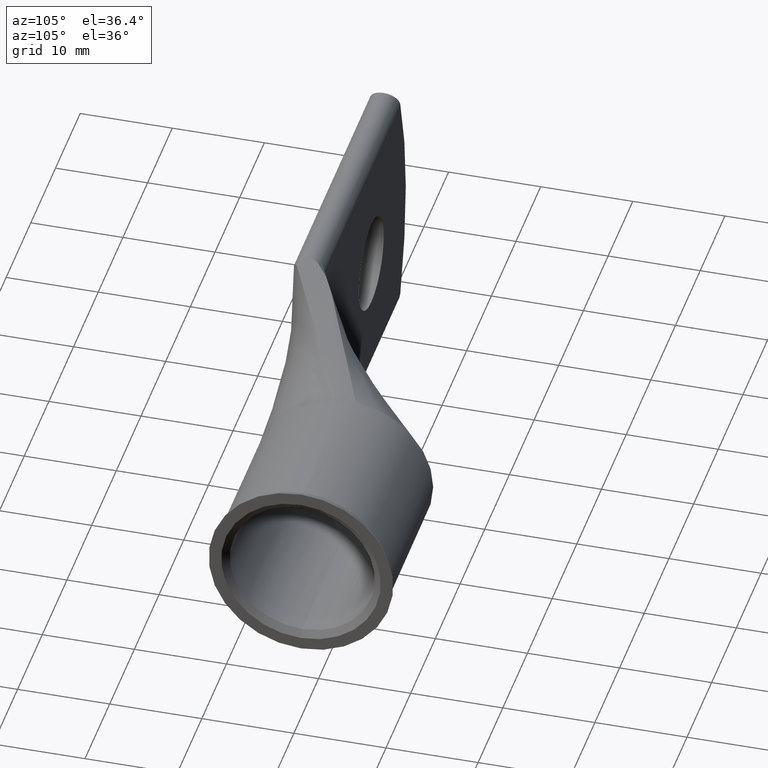
[diagram: clean part render]
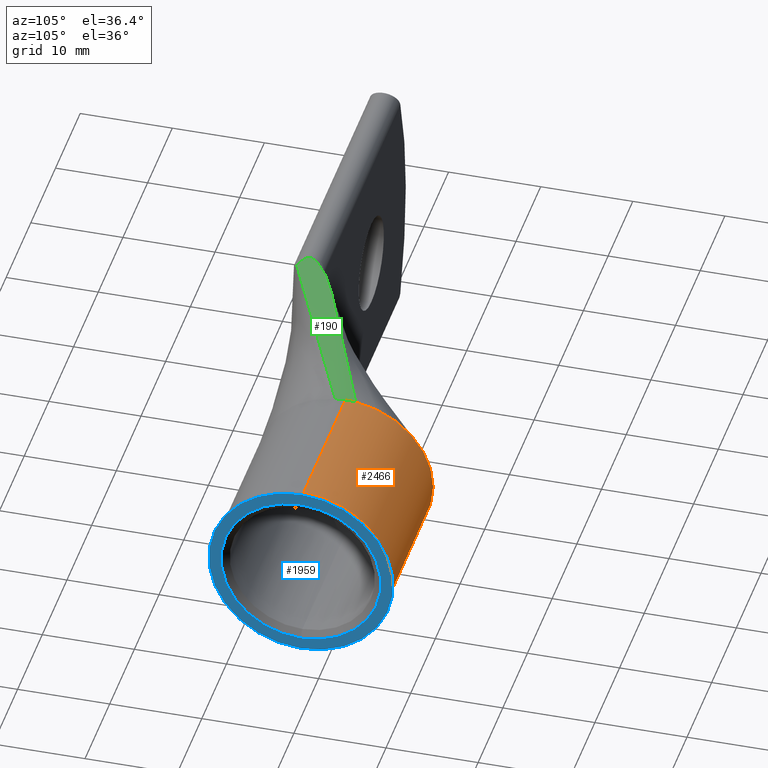
[diagram: same view with three faces highlighted in distinct colors, each labeled with its STEP entity id]
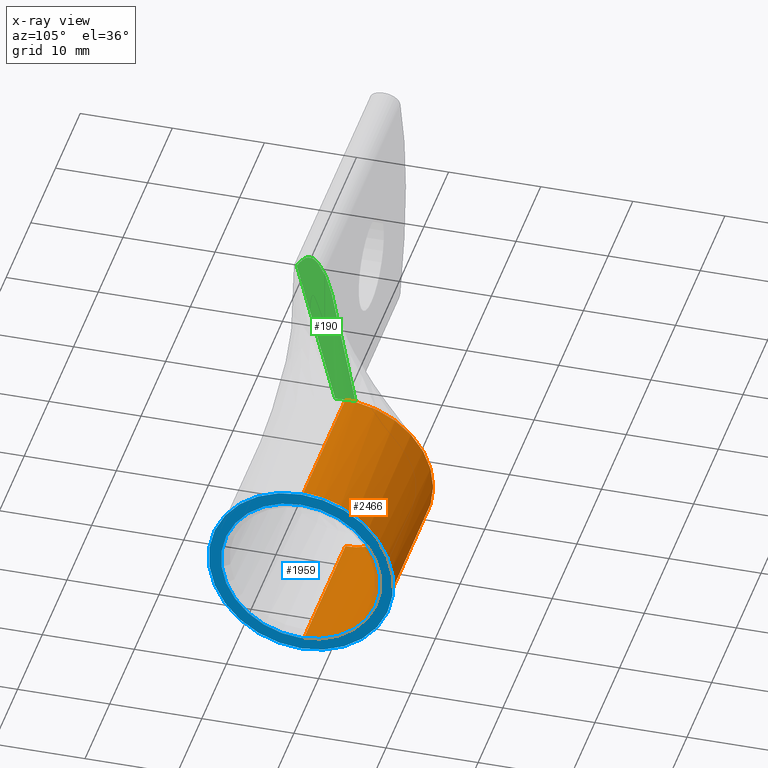
[diagram: x-ray of the same camera — body ghosted, the three highlighted faces saturated]
A machine part, auxiliary view with three faces highlighted in distinct colors.
The next image is the same camera in x-ray (body ghosted, the three faces saturated) — at least one of them is partly hidden behind the body in this view.
Their STEP definitions:

[orange] entity #2466 — the highlighted cylindrical surface (partial cylindrical patch) has radius 9.525 mm, axis along (1, 0, 0).
#9 = CARTESIAN_POINT ( 'NONE',  ( 2.008032000000000039, 0.3398715056912016697, 0.3750000000000000555 ) ) ;
#135 = VERTEX_POINT ( 'NONE', #4416 ) ;
#212 = CARTESIAN_POINT ( 'NONE',  ( 1.338032000000000110, 0.3398715056912016697, 0.3749955221139532058 ) ) ;
#231 = VECTOR ( 'NONE', #371, 39.37007874015748143 ) ;
#285 = DIRECTION ( 'NONE',  ( 1.000000000000000000, 0.000000000000000000, 0.000000000000000000 ) ) ;
#309 = CYLINDRICAL_SURFACE ( 'NONE', #812, 0.3750000000000000555 ) ;
#318 = CIRCLE ( 'NONE', #2470, 0.3750000000000000555 ) ;
#346 = VERTEX_POINT ( 'NONE', #2140 ) ;
#371 = DIRECTION ( 'NONE',  ( 1.000000000000000000, 0.000000000000000000, 0.000000000000000000 ) ) ;
#484 = B_SPLINE_CURVE_WITH_KNOTS ( 'NONE', 3,
 ( #2736, #1978, #3935, #4662, #822, #2341, #3520, #3149, #2762, #1536, #5053, #1487, #3574, #1204, #2316, #715, #4350, #9 ),
 .UNSPECIFIED., .F., .F.,
 ( 4, 2, 2, 2, 2, 2, 2, 2, 4 ),
 ( 0.8968421699546255121, 0.9593421699546255121, 1.021842169954625401, 1.084342169954625401, 1.146842169954625401, 1.209342169954625401, 1.271842169954625401, 1.334342169954625401, 1.396842169954625401 ),
 .UNSPECIFIED. ) ;
#552 = ORIENTED_EDGE ( 'NONE', *, *, #2098, .T. ) ;
#565 = DIRECTION ( 'NONE',  ( 0.000000000000000000, 0.000000000000000000, -1.000000000000000000 ) ) ;
#580 = ORIENTED_EDGE ( 'NONE', *, *, #3165, .T. ) ;
#715 = CARTESIAN_POINT ( 'NONE',  ( 2.008032000000000483, 0.4380269623259317457, 0.3652397537506184011 ) ) ;
#764 = CARTESIAN_POINT ( 'NONE',  ( 1.338032000000000110, 0.3398715056912016141, -0.3750000000000000555 ) ) ;
#781 = DIRECTION ( 'NONE',  ( 0.000000000000000000, 0.000000000000000000, -1.000000000000000000 ) ) ;
#812 = AXIS2_PLACEMENT_3D ( 'NONE', #4672, #285, #781 ) ;
#822 = CARTESIAN_POINT ( 'NONE',  ( 2.008032000000000039, 0.5703265256817947604, -0.2998750658993174500 ) ) ;
#955 = CARTESIAN_POINT ( 'NONE',  ( 1.338032000000000110, 0.3838862804103131410, -0.3724332766821089047 ) ) ;
#1058 = CIRCLE ( 'NONE', #3046, 0.3750000000000000555 ) ;
#1079 = DIRECTION ( 'NONE',  ( 1.000000000000000000, 0.000000000000000000, 0.000000000000000000 ) ) ;
#1102 = CARTESIAN_POINT ( 'NONE',  ( 2.008032000000000039, 0.3398715056912016697, -0.3750000000000000555 ) ) ;
#1204 = CARTESIAN_POINT ( 'NONE',  ( 2.008032000000000927, 0.5703265256817946494, 0.2998750658993176166 ) ) ;
#1271 = EDGE_CURVE ( 'NONE', #135, #3771, #4708, .T. ) ;
#1456 = EDGE_LOOP ( 'NONE', ( #4165, #552, #3462, #2989, #2729, #580 ) ) ;
#1470 = CIRCLE ( 'NONE', #3469, 0.3750000000000000555 ) ;
#1487 = CARTESIAN_POINT ( 'NONE',  ( 2.008032000000000039, 0.6675414013240483779, 0.1888571176390873574 ) ) ;
#1536 = CARTESIAN_POINT ( 'NONE',  ( 2.008031999999999595, 0.7148715056912018362, 0.04908738521234055907 ) ) ;
#1571 = CARTESIAN_POINT ( 'NONE',  ( 1.338032000000000110, 0.3398715056912016697, 0.3750000000000000555 ) ) ;
#1581 = VERTEX_POINT ( 'NONE', #955 ) ;
#1801 = CARTESIAN_POINT ( 'NONE',  ( 1.338032000000000110, 0.3398715056912016141, 0.000000000000000000 ) ) ;
#1978 = CARTESIAN_POINT ( 'NONE',  ( 2.008032000000000483, 0.3889588909035424646, -0.3749999999999999445 ) ) ;
#2098 = EDGE_CURVE ( 'NONE', #4969, #4013, #3556, .T. ) ;
#2140 = CARTESIAN_POINT ( 'NONE',  ( 1.338032000000000110, 0.3838862977660709164, 0.3724334059865022084 ) ) ;
#2253 = EDGE_CURVE ( 'NONE', #135, #1581, #1058, .T. ) ;
#2316 = CARTESIAN_POINT ( 'NONE',  ( 2.008032000000000039, 0.5287286233302888050, 0.3276698956328469303 ) ) ;
#2341 = CARTESIAN_POINT ( 'NONE',  ( 2.008032000000000483, 0.6397465715905193973, -0.2304550199905930630 ) ) ;
#2395 = CARTESIAN_POINT ( 'NONE',  ( 2.008032000000000039, 0.3398715056912016697, 0.3750000000000000555 ) ) ;
#2466 = ADVANCED_FACE ( 'NONE', ( #4334 ), #309, .T. ) ;
#2470 = AXIS2_PLACEMENT_3D ( 'NONE', #4410, #4508, #565 ) ;
#2637 = VECTOR ( 'NONE', #3157, 39.37007874015748143 ) ;
#2729 = ORIENTED_EDGE ( 'NONE', *, *, #2253, .T. ) ;
#2736 = CARTESIAN_POINT ( 'NONE',  ( 2.008032000000000039, 0.3398715056912016697, -0.3750000000000000555 ) ) ;
#2762 = CARTESIAN_POINT ( 'NONE',  ( 2.008032000000000039, 0.7148715056912015031, -0.04908738521234044805 ) ) ;
#2989 = ORIENTED_EDGE ( 'NONE', *, *, #1271, .F. ) ;
#3046 = AXIS2_PLACEMENT_3D ( 'NONE', #1801, #1079, #3836 ) ;
#3149 = CARTESIAN_POINT ( 'NONE',  ( 2.008032000000000039, 0.7051112594418200707, -0.09815545663472999283 ) ) ;
#3157 = DIRECTION ( 'NONE',  ( 1.000000000000000000, 0.000000000000000000, 0.000000000000000000 ) ) ;
#3165 = EDGE_CURVE ( 'NONE', #1581, #346, #1470, .T. ) ;
#3459 = EDGE_CURVE ( 'NONE', #346, #4969, #318, .T. ) ;
#3462 = ORIENTED_EDGE ( 'NONE', *, *, #3907, .F. ) ;
#3469 = AXIS2_PLACEMENT_3D ( 'NONE', #3998, #3972, #3581 ) ;
#3520 = CARTESIAN_POINT ( 'NONE',  ( 2.008032000000000039, 0.6675414013240483779, -0.1888571176390872741 ) ) ;
#3556 = LINE ( 'NONE', #1571, #2637 ) ;
#3574 = CARTESIAN_POINT ( 'NONE',  ( 2.008031999999999595, 0.6397465715905189532, 0.2304550199905930907 ) ) ;
#3581 = DIRECTION ( 'NONE',  ( 0.000000000000000000, 0.000000000000000000, -1.000000000000000000 ) ) ;
#3771 = VERTEX_POINT ( 'NONE', #1102 ) ;
#3836 = DIRECTION ( 'NONE',  ( 0.000000000000000000, 0.000000000000000000, -1.000000000000000000 ) ) ;
#3907 = EDGE_CURVE ( 'NONE', #3771, #4013, #484, .T. ) ;
#3935 = CARTESIAN_POINT ( 'NONE',  ( 2.008032000000000039, 0.4380269623259318568, -0.3652397537506183456 ) ) ;
#3972 = DIRECTION ( 'NONE',  ( 1.000000000000000000, 0.000000000000000000, 0.000000000000000000 ) ) ;
#3998 = CARTESIAN_POINT ( 'NONE',  ( 1.338032000000000110, 0.3398715056912016141, 0.000000000000000000 ) ) ;
#4013 = VERTEX_POINT ( 'NONE', #2395 ) ;
#4165 = ORIENTED_EDGE ( 'NONE', *, *, #3459, .T. ) ;
#4334 = FACE_OUTER_BOUND ( 'NONE', #1456, .T. ) ;
#4350 = CARTESIAN_POINT ( 'NONE',  ( 2.008032000000000039, 0.3889588909035424091, 0.3750000000000000555 ) ) ;
#4410 = CARTESIAN_POINT ( 'NONE',  ( 1.338032000000000110, 0.3398715056912016141, 0.000000000000000000 ) ) ;
#4416 = CARTESIAN_POINT ( 'NONE',  ( 1.338032000000000110, 0.3398715056912016697, -0.3749955221139530948 ) ) ;
#4508 = DIRECTION ( 'NONE',  ( 1.000000000000000000, 0.000000000000000000, 0.000000000000000000 ) ) ;
#4662 = CARTESIAN_POINT ( 'NONE',  ( 2.008032000000000039, 0.5287286233302889160, -0.3276698956328467083 ) ) ;
#4672 = CARTESIAN_POINT ( 'NONE',  ( 1.338032000000000110, 0.3398715056912016141, 0.000000000000000000 ) ) ;
#4708 = LINE ( 'NONE', #764, #231 ) ;
#4969 = VERTEX_POINT ( 'NONE', #212 ) ;
#5053 = CARTESIAN_POINT ( 'NONE',  ( 2.008032000000000039, 0.7051112594418198487, 0.09815545663473013160 ) ) ;

[blue] entity #1959 — the highlighted planar face has unit normal (-1, 0, -0).
#32 = ORIENTED_EDGE ( 'NONE', *, *, #217, .T. ) ;
#74 = CARTESIAN_POINT ( 'NONE',  ( 2.047402078740157449, 0.3398715089448515192, 0.3946798216760702971 ) ) ;
#185 = VERTEX_POINT ( 'NONE', #74 ) ;
#217 = EDGE_CURVE ( 'NONE', #2283, #2438, #4050, .T. ) ;
#227 = DIRECTION ( 'NONE',  ( 0.000000000000000000, 0.000000000000000000, -1.000000000000000000 ) ) ;
#359 = CARTESIAN_POINT ( 'NONE',  ( 2.047402078740157449, 0.3398715056912016141, 0.000000000000000000 ) ) ;
#537 = CARTESIAN_POINT ( 'NONE',  ( 2.047402078740157449, 0.3398715056912016141, 0.000000000000000000 ) ) ;
#541 = CARTESIAN_POINT ( 'NONE',  ( 2.047402078740157449, 0.3398715056912016141, 0.000000000000000000 ) ) ;
#562 = DIRECTION ( 'NONE',  ( 0.000000000000000000, 0.000000000000000000, 1.000000000000000000 ) ) ;
#643 = CARTESIAN_POINT ( 'NONE',  ( 2.047402078740157449, 0.3398715056912016697, 0.3414244647129196508 ) ) ;
#671 = CARTESIAN_POINT ( 'NONE',  ( 2.047402078740157449, 0.3398715056912016141, 0.000000000000000000 ) ) ;
#751 = DIRECTION ( 'NONE',  ( -0.000000000000000000, 0.000000000000000000, 1.000000000000000000 ) ) ;
#890 = CARTESIAN_POINT ( 'NONE',  ( 2.047402078740157449, 0.3398715044850830203, -0.3946826645454746263 ) ) ;
#991 = EDGE_LOOP ( 'NONE', ( #1732, #1146 ) ) ;
#1059 = FACE_OUTER_BOUND ( 'NONE', #991, .T. ) ;
#1134 = PLANE ( 'NONE',  #2885 ) ;
#1146 = ORIENTED_EDGE ( 'NONE', *, *, #2533, .F. ) ;
#1170 = EDGE_CURVE ( 'NONE', #4656, #185, #4291, .T. ) ;
#1221 = AXIS2_PLACEMENT_3D ( 'NONE', #541, #3787, #227 ) ;
#1433 = CARTESIAN_POINT ( 'NONE',  ( 2.047402078740157449, 0.3398715056912016141, 0.000000000000000000 ) ) ;
#1643 = DIRECTION ( 'NONE',  ( -1.000000000000000000, -0.000000000000000000, -0.000000000000000000 ) ) ;
#1732 = ORIENTED_EDGE ( 'NONE', *, *, #1170, .F. ) ;
#1881 = CIRCLE ( 'NONE', #4713, 0.3414244647129196508 ) ;
#1904 = DIRECTION ( 'NONE',  ( -1.000000000000000000, -0.000000000000000000, -0.000000000000000000 ) ) ;
#1959 = ADVANCED_FACE ( 'NONE', ( #3104, #1059 ), #1134, .F. ) ;
#2236 = DIRECTION ( 'NONE',  ( 0.000000000000000000, 0.000000000000000000, -1.000000000000000000 ) ) ;
#2283 = VERTEX_POINT ( 'NONE', #643 ) ;
#2438 = VERTEX_POINT ( 'NONE', #2956 ) ;
#2533 = EDGE_CURVE ( 'NONE', #185, #4656, #3713, .T. ) ;
#2563 = EDGE_CURVE ( 'NONE', #2438, #2283, #1881, .T. ) ;
#2718 = DIRECTION ( 'NONE',  ( -1.000000000000000000, 0.000000000000000000, -0.000000000000000000 ) ) ;
#2885 = AXIS2_PLACEMENT_3D ( 'NONE', #359, #2718, #751 ) ;
#2956 = CARTESIAN_POINT ( 'NONE',  ( 2.047402078740157449, 0.3398715056912016141, -0.3414244647129196508 ) ) ;
#3016 = DIRECTION ( 'NONE',  ( -1.000000000000000000, -0.000000000000000000, -0.000000000000000000 ) ) ;
#3104 = FACE_BOUND ( 'NONE', #4548, .T. ) ;
#3200 = ORIENTED_EDGE ( 'NONE', *, *, #2563, .T. ) ;
#3463 = AXIS2_PLACEMENT_3D ( 'NONE', #1433, #3016, #2236 ) ;
#3713 = CIRCLE ( 'NONE', #1221, 0.3946850000000000080 ) ;
#3787 = DIRECTION ( 'NONE',  ( -1.000000000000000000, -0.000000000000000000, -0.000000000000000000 ) ) ;
#3838 = DIRECTION ( 'NONE',  ( 0.000000000000000000, 0.000000000000000000, 1.000000000000000000 ) ) ;
#4050 = CIRCLE ( 'NONE', #4957, 0.3414244647129196508 ) ;
#4291 = CIRCLE ( 'NONE', #3463, 0.3946850000000000080 ) ;
#4548 = EDGE_LOOP ( 'NONE', ( #3200, #32 ) ) ;
#4656 = VERTEX_POINT ( 'NONE', #890 ) ;
#4713 = AXIS2_PLACEMENT_3D ( 'NONE', #671, #1904, #3838 ) ;
#4957 = AXIS2_PLACEMENT_3D ( 'NONE', #537, #1643, #562 ) ;

[green] entity #190 — the highlighted face is a freeform B-spline surface patch.
#22 = CARTESIAN_POINT ( 'NONE',  ( 1.344912320000000161, 0.2701817141532486533, 0.3671195429821912937 ) ) ;
#45 = B_SPLINE_CURVE_WITH_KNOTS ( 'NONE', 3,
 ( #3372, #4132, #2149, #1754, #4959, #1396, #4932, #2979, #4205, #1368 ),
 .UNSPECIFIED., .F., .F.,
 ( 4, 2, 2, 2, 4 ),
 ( 5.598943582528966244E-13, 0.0002157102203172836833, 0.0004314204400746731133, 0.0008628408795894528405, 0.001725681758619002429 ),
 .UNSPECIFIED. ) ;
#49 = CARTESIAN_POINT ( 'NONE',  ( 1.338032000000000110, 0.2958596138713020518, 0.3724083153991509243 ) ) ;
#67 = CARTESIAN_POINT ( 'NONE',  ( 1.344912320000000161, 0.3876521620972374071, 0.3705628370566880214 ) ) ;
#84 = DIRECTION ( 'NONE',  ( 0.000000000000000000, 0.000000000000000000, -1.000000000000000000 ) ) ;
#125 = CARTESIAN_POINT ( 'NONE',  ( 1.344912320000000161, 0.3579220934793495013, 0.3732409546701854208 ) ) ;
#144 = CARTESIAN_POINT ( 'NONE',  ( -0.04491231999999978353, -0.2570722314862122770, 0.7293676014468575275 ) ) ;
#150 = CARTESIAN_POINT ( 'NONE',  ( -0.04491231999999978353, -0.4006331419523084247, 0.7276285640354955842 ) ) ;
#174 = CARTESIAN_POINT ( 'NONE',  ( 1.400505305600000749, 0.4128380100051096124, 0.3562829904373937540 ) ) ;
#190 = ADVANCED_FACE ( 'NONE', ( #3240 ), #2591, .T. ) ;
#212 = CARTESIAN_POINT ( 'NONE',  ( 1.338032000000000110, 0.3398715056912016697, 0.3749955221139532058 ) ) ;
#318 = CIRCLE ( 'NONE', #2470, 0.3750000000000000555 ) ;
#346 = VERTEX_POINT ( 'NONE', #2140 ) ;
#520 = CARTESIAN_POINT ( 'NONE',  ( 1.344912320000000161, 0.3870722314862123370, 0.3706323985531424503 ) ) ;
#543 = CARTESIAN_POINT ( 'NONE',  ( -0.04491231999999978353, -0.3719516813502108943, 0.7267590453298146125 ) ) ;
#563 = VECTOR ( 'NONE', #1496, 39.37007874015748143 ) ;
#565 = DIRECTION ( 'NONE',  ( 0.000000000000000000, 0.000000000000000000, -1.000000000000000000 ) ) ;
#571 = CARTESIAN_POINT ( 'NONE',  ( -0.04491231999999978353, -0.3145887601460159999, 0.7267590453298146125 ) ) ;
#586 = ORIENTED_EDGE ( 'NONE', *, *, #3459, .F. ) ;
#714 = CARTESIAN_POINT ( 'NONE',  ( 0.6499999999999999112, 0.007301848043493756879, 0.5500000000000000444 ) ) ;
#794 = CARTESIAN_POINT ( 'NONE',  ( 1.338032000000000110, 0.3398715056912016141, 0.000000000000000000 ) ) ;
#795 = CARTESIAN_POINT ( 'NONE',  ( 0.6663058742711124305, 0.03905505243823405304, 0.5458397738843744351 ) ) ;
#807 = CARTESIAN_POINT ( 'NONE',  ( 1.400505305600000749, 0.2723695024268664722, 0.3486952224041394710 ) ) ;
#816 = EDGE_CURVE ( 'NONE', #5047, #2261, #3246, .T. ) ;
#821 = CARTESIAN_POINT ( 'NONE',  ( 0.6916212427968164711, 0.06455383082497455349, 0.5393461594390989156 ) ) ;
#873 = CARTESIAN_POINT ( 'NONE',  ( 1.338032000000000110, 0.3841747823020378316, 0.3723738790147675393 ) ) ;
#908 = CARTESIAN_POINT ( 'NONE',  ( -4.214386239999998729, -2.761405332406074553, 1.830163199124660744 ) ) ;
#924 = CARTESIAN_POINT ( 'NONE',  ( -4.214386239999998729, -2.186631801347328263, 1.806060140603184649 ) ) ;
#930 = CARTESIAN_POINT ( 'NONE',  ( -0.04491231999999978353, -0.2859072995439186360, 0.7276285640354955842 ) ) ;
#952 = CARTESIAN_POINT ( 'NONE',  ( 1.400505305600000749, 0.3989132168407656387, 0.3581611508416646661 ) ) ;
#1043 = ORIENTED_EDGE ( 'NONE', *, *, #2982, .T. ) ;
#1127 = CARTESIAN_POINT ( 'NONE',  ( 0.6500000000000556444, 0.01194911304803299157, 0.5499999999999861666 ) ) ;
#1132 = LINE ( 'NONE', #2796, #5045 ) ;
#1150 = DIRECTION ( 'NONE',  ( 0.8833902792301041584, 0.4094264417486048746, -0.2280166734228766812 ) ) ;
#1216 = CARTESIAN_POINT ( 'NONE',  ( 1.338032000000000110, 0.2664297499867149255, 0.3689302405764269821 ) ) ;
#1262 = CARTESIAN_POINT ( 'NONE',  ( -0.04491231999999978353, -0.2553421274027498633, 0.7294719436915393374 ) ) ;
#1269 = CARTESIAN_POINT ( 'NONE',  ( -4.214386239999998729, -3.051661057078013606, 1.879343177117977381 ) ) ;
#1279 = CARTESIAN_POINT ( 'NONE',  ( 1.338032000000000110, 0.2958568313063515420, 0.3724324052485260550 ) ) ;
#1295 = CARTESIAN_POINT ( 'NONE',  ( 1.400505305600000749, 0.3004975846188413513, 0.3524891064207665847 ) ) ;
#1310 = CARTESIAN_POINT ( 'NONE',  ( 1.344912320000000161, 0.3879421274027499145, 0.3705280563084607515 ) ) ;
#1317 = CARTESIAN_POINT ( 'NONE',  ( -4.214386239999998729, -2.473661769451477088, 1.787313317308701910 ) ) ;
#1335 = CARTESIAN_POINT ( 'NONE',  ( -4.214386239999998729, -2.188068710875407330, 1.805816675365594204 ) ) ;
#1342 = CARTESIAN_POINT ( 'NONE',  ( 1.338032000000000110, 0.3545928318277388192, 0.3749910442279063560 ) ) ;
#1368 = CARTESIAN_POINT ( 'NONE',  ( 0.6998873380981881498, -0.03883504609788611395, 0.5371233076178008048 ) ) ;
#1373 = VERTEX_POINT ( 'NONE', #5097 ) ;
#1396 = CARTESIAN_POINT ( 'NONE',  ( 0.6607673286960648040, -0.01915357535918992340, 0.5472565324362489436 ) ) ;
#1496 = DIRECTION ( 'NONE',  ( -0.8633197628486272146, -0.4527946901728694962, 0.2228361631922546049 ) ) ;
#1575 = CARTESIAN_POINT ( 'NONE',  ( -4.214386239999998729, -2.616277470070104361, 1.805573210128002648 ) ) ;
#1604 = EDGE_CURVE ( 'NONE', #1373, #2520, #45, .T. ) ;
#1675 = CARTESIAN_POINT ( 'NONE',  ( 1.338032000000000110, 0.2075700222175406173, 0.3619740909309790977 ) ) ;
#1698 = CARTESIAN_POINT ( 'NONE',  ( 0.6500000000000000222, 0.02166666666666670210, 0.5500000000000000444 ) ) ;
#1724 = CARTESIAN_POINT ( 'NONE',  ( 1.338032000000000110, 0.3251501795546645202, 0.3749910442279063560 ) ) ;
#1751 = CARTESIAN_POINT ( 'NONE',  ( -1.434736959999999506, -0.9443885652984226331, 1.082885692106486664 ) ) ;
#1754 = CARTESIAN_POINT ( 'NONE',  ( 0.6533094662481643278, -0.01073677174766317008, 0.5491578424640974898 ) ) ;
#1759 = ORIENTED_EDGE ( 'NONE', *, *, #2784, .F. ) ;
#1923 = CARTESIAN_POINT ( 'NONE',  ( 0.7800586597148910784, 0.1243411447961655231, 0.5164486392085573252 ) ) ;
#1990 = CARTESIAN_POINT ( 'NONE',  ( 1.338032000000000110, 0.2369998861021277714, 0.3654521657537030399 ) ) ;
#2036 = CARTESIAN_POINT ( 'NONE',  ( 1.400505305600000749, 0.4136734975949697413, 0.3561703008131379411 ) ) ;
#2072 = CARTESIAN_POINT ( 'NONE',  ( -4.214386239999998729, -2.906533194742043857, 1.854753188121319063 ) ) ;
#2097 = CARTESIAN_POINT ( 'NONE',  ( 1.338032000000000110, 0.3838833975111012875, 0.3724083153991509243 ) ) ;
#2117 = AXIS2_PLACEMENT_3D ( 'NONE', #794, #3668, #84 ) ;
#2121 = CARTESIAN_POINT ( 'NONE',  ( 1.338032000000000110, 0.3693141579642759686, 0.3741301346183212306 ) ) ;
#2140 = CARTESIAN_POINT ( 'NONE',  ( 1.338032000000000110, 0.3838862977660709164, 0.3724334059865022084 ) ) ;
#2146 = CARTESIAN_POINT ( 'NONE',  ( 1.344912320000000161, 0.3139664752856419772, 0.3723714359645043936 ) ) ;
#2149 = CARTESIAN_POINT ( 'NONE',  ( 0.6507788220263738266, -0.005675824475680863075, 0.5498019446759376816 ) ) ;
#2261 = VERTEX_POINT ( 'NONE', #2664 ) ;
#2340 = CARTESIAN_POINT ( 'NONE',  ( 0.8118833612453159043, 0.1400283653004849305, 0.5082154044689732864 ) ) ;
#2366 = CARTESIAN_POINT ( 'NONE',  ( 0.6517256580911920949, 0.01635890767611788629, 0.5495609127303380248 ) ) ;
#2396 = CARTESIAN_POINT ( 'NONE',  ( 0.6583037887684908274, 0.02824222405664539304, 0.5478838364080571566 ) ) ;
#2452 = CARTESIAN_POINT ( 'NONE',  ( 1.344912320000000161, 0.3873621967917248443, 0.3705976178049152359 ) ) ;
#2468 = EDGE_CURVE ( 'NONE', #4917, #2520, #3453, .T. ) ;
#2470 = AXIS2_PLACEMENT_3D ( 'NONE', #4410, #4508, #565 ) ;
#2488 = CARTESIAN_POINT ( 'NONE',  ( -0.04491231999999978353, -0.4294682100100149502, 0.7293676014468575275 ) ) ;
#2506 = CARTESIAN_POINT ( 'NONE',  ( -1.434736959999999506, -0.9012166944586369466, 1.088102804340572494 ) ) ;
#2520 = VERTEX_POINT ( 'NONE', #2615 ) ;
#2535 = CIRCLE ( 'NONE', #2117, 0.3750000000000000555 ) ;
#2539 = CARTESIAN_POINT ( 'NONE',  ( 1.344912320000000161, 0.3286183480168777815, 0.3732409546701854208 ) ) ;
#2560 = CARTESIAN_POINT ( 'NONE',  ( 0.6500000000000000222, 0.06543333333333332946, 0.5500000000000000444 ) ) ;
#2591 = B_SPLINE_SURFACE_WITH_KNOTS ( 'NONE', 3, 1, ( 
 ( #3188, #4775, #1675, #4826, #4054, #3611, #1269 ),
 ( #807, #2854, #1990, #3560, #4440, #4855, #2072 ),
 ( #1295, #22, #1216, #3659, #2802, #4391, #908 ),
 ( #4003, #3269, #49, #2880, #2488, #5142, #1575 ),
 ( #4879, #2146, #3343, #4928, #150, #3293, #3710 ),
 ( #3683, #2539, #1724, #3317, #543, #4902, #1317 ),
 ( #4128, #125, #1342, #1698, #571, #2904, #4080 ),
 ( #952, #4488, #2121, #4515, #930, #1751, #3736 ),
 ( #174, #520, #2097, #4072, #144, #2506, #3652 ),
 ( #2943, #2452, #873, #2560, #3311, #3337, #1335 ),
 ( #4458, #67, #4121, #4871, #2920, #2897, #924 ),
 ( #2036, #1310, #4147, #4482, #1262, #3627, #4098 ) ),
 .UNSPECIFIED., .F., .F., .F.,
 ( 4, 3, 2, 3, 4 ),
 ( 2, 1, 1, 1, 1, 1, 2 ),
 ( -1.010000000000000009, 0.000000000000000000, 0.5000000000000000000, 1.000000000000000000, 1.010000000000000009 ),
 ( -0.09079999999999997795, -0.01000000000000000021, 0.000000000000000000, 1.000000000000000000, 2.009999999999999787, 4.029999999999999361, 8.069999999999998508 ),
 .UNSPECIFIED. ) ;
#2615 = CARTESIAN_POINT ( 'NONE',  ( 0.6998873380981881498, -0.03883504609788611395, 0.5371233076178008048 ) ) ;
#2664 = CARTESIAN_POINT ( 'NONE',  ( 0.6499999999999999112, 0.007301848043493756879, 0.5500000000000000444 ) ) ;
#2784 = EDGE_CURVE ( 'NONE', #5047, #346, #4885, .T. ) ;
#2796 = CARTESIAN_POINT ( 'NONE',  ( 0.6499999999999999112, 0.06500000000000000222, 0.5500000000000000444 ) ) ;
#2802 = CARTESIAN_POINT ( 'NONE',  ( -0.04491231999999978353, -0.4877150474865820651, 0.7328804570178089062 ) ) ;
#2854 = CARTESIAN_POINT ( 'NONE',  ( 1.344912320000000161, 0.2408952182964822497, 0.3636066874112401370 ) ) ;
#2880 = CARTESIAN_POINT ( 'NONE',  ( 0.6500000000000000222, -0.06499999999999996059, 0.5500000000000000444 ) ) ;
#2897 = CARTESIAN_POINT ( 'NONE',  ( -1.434736959999999506, -0.8994898196250453726, 1.088311488829936335 ) ) ;
#2904 = CARTESIAN_POINT ( 'NONE',  ( -1.434736959999999506, -0.9870996137713814456, 1.080277135989443638 ) ) ;
#2907 = CARTESIAN_POINT ( 'NONE',  ( 0.9940160000000001217, 0.2244416987555506449, 0.4612041576995755121 ) ) ;
#2920 = CARTESIAN_POINT ( 'NONE',  ( -0.04491231999999978353, -0.2559188287639040382, 0.7294371629433121784 ) ) ;
#2938 = ORIENTED_EDGE ( 'NONE', *, *, #4669, .F. ) ;
#2943 = CARTESIAN_POINT ( 'NONE',  ( 1.400505305600000749, 0.4131165058683963220, 0.3562454272293084645 ) ) ;
#2979 = CARTESIAN_POINT ( 'NONE',  ( 0.6795001131450507659, -0.03103917366069510603, 0.5424497025408432371 ) ) ;
#2982 = EDGE_CURVE ( 'NONE', #2261, #1373, #1132, .T. ) ;
#2986 = CARTESIAN_POINT ( 'NONE',  ( 0.8118833612453159043, 0.1400283653004849305, 0.5082154044689732864 ) ) ;
#3142 = EDGE_LOOP ( 'NONE', ( #1759, #3955, #1043, #3567, #4422, #2938, #586 ) ) ;
#3188 = CARTESIAN_POINT ( 'NONE',  ( 1.400505305600000749, 0.2442414202348915930, 0.3449013383875124128 ) ) ;
#3240 = FACE_OUTER_BOUND ( 'NONE', #3142, .T. ) ;
#3246 = B_SPLINE_CURVE_WITH_KNOTS ( 'NONE', 3,
 ( #2340, #4349, #1923, #3519, #3599, #3573, #821, #3934, #795, #2396, #3494, #2366, #1127, #714 ),
 .UNSPECIFIED., .F., .F.,
 ( 4, 2, 2, 2, 2, 2, 4 ),
 ( 4.336808689942017736E-19, 0.001384879048297308745, 0.002769758096594617056, 0.004154637144891925801, 0.004847076669040580391, 0.005193296431114909420, 0.005539516193189238449 ),
 .UNSPECIFIED. ) ;
#3269 = CARTESIAN_POINT ( 'NONE',  ( 1.344912320000000161, 0.2994682100100150568, 0.3706323985531424503 ) ) ;
#3293 = CARTESIAN_POINT ( 'NONE',  ( -1.434736959999999506, -1.115232759190258882, 1.082885692106486664 ) ) ;
#3311 = CARTESIAN_POINT ( 'NONE',  ( -0.04491231999999978353, -0.2564955301250581021, 0.7294023821950849085 ) ) ;
#3317 = CARTESIAN_POINT ( 'NONE',  ( 0.6500000000000000222, -0.02166666666666661537, 0.5500000000000000444 ) ) ;
#3337 = CARTESIAN_POINT ( 'NONE',  ( -1.434736959999999506, -0.9003532570418411041, 1.088207146585254748 ) ) ;
#3343 = CARTESIAN_POINT ( 'NONE',  ( 1.338032000000000110, 0.3104288534181273707, 0.3741301346183212306 ) ) ;
#3372 = CARTESIAN_POINT ( 'NONE',  ( 0.6499999999999999112, -5.975917486140575174E-17, 0.5500000000000000444 ) ) ;
#3453 = LINE ( 'NONE', #5114, #563 ) ;
#3459 = EDGE_CURVE ( 'NONE', #346, #4969, #318, .T. ) ;
#3494 = CARTESIAN_POINT ( 'NONE',  ( 0.6558264218052182182, 0.02449504020978455002, 0.5485158078201327614 ) ) ;
#3519 = CARTESIAN_POINT ( 'NONE',  ( 0.7494218644793301243, 0.1064669544281507674, 0.5243949303425834430 ) ) ;
#3560 = CARTESIAN_POINT ( 'NONE',  ( 0.6500000000000000222, -0.1525333333333333818, 0.5500000000000003775 ) ) ;
#3567 = ORIENTED_EDGE ( 'NONE', *, *, #1604, .T. ) ;
#3573 = CARTESIAN_POINT ( 'NONE',  ( 0.7055819470928189618, 0.07581278661420935705, 0.5357465091666597790 ) ) ;
#3599 = CARTESIAN_POINT ( 'NONE',  ( 0.7344666868625263634, 0.09680427891545649588, 0.5282747240471394878 ) ) ;
#3611 = CARTESIAN_POINT ( 'NONE',  ( -1.434736959999999506, -1.420026167319148769, 1.119718504479133347 ) ) ;
#3627 = CARTESIAN_POINT ( 'NONE',  ( -1.434736959999999506, -0.8986263822082496411, 1.088415831074617923 ) ) ;
#3652 = CARTESIAN_POINT ( 'NONE',  ( -4.214386239999998729, -2.189505620403486397, 1.805573210128002648 ) ) ;
#3659 = CARTESIAN_POINT ( 'NONE',  ( 0.6500000000000000222, -0.1087666666666666643, 0.5500000000000002665 ) ) ;
#3668 = DIRECTION ( 'NONE',  ( 1.000000000000000000, 0.000000000000000000, 0.000000000000000000 ) ) ;
#3683 = CARTESIAN_POINT ( 'NONE',  ( 1.400505305600000749, 0.3566411491915612020, 0.3591002310438003997 ) ) ;
#3710 = CARTESIAN_POINT ( 'NONE',  ( -4.214386239999998729, -2.544431993666159464, 1.793399948248468823 ) ) ;
#3736 = CARTESIAN_POINT ( 'NONE',  ( -4.214386239999998729, -2.261351096807430849, 1.793399948248468823 ) ) ;
#3934 = CARTESIAN_POINT ( 'NONE',  ( 0.6724413375310577257, 0.04569150476992293874, 0.5442690564236715156 ) ) ;
#3955 = ORIENTED_EDGE ( 'NONE', *, *, #816, .T. ) ;
#4003 = CARTESIAN_POINT ( 'NONE',  ( 1.400505305600000749, 0.3286256668108161749, 0.3562829904373937540 ) ) ;
#4054 = CARTESIAN_POINT ( 'NONE',  ( -0.04491231999999978353, -0.6042087224397163503, 0.7399061681597114415 ) ) ;
#4072 = CARTESIAN_POINT ( 'NONE',  ( 0.6500000000000000222, 0.06500000000000000222, 0.5500000000000000444 ) ) ;
#4080 = CARTESIAN_POINT ( 'NONE',  ( -4.214386239999998729, -2.332121321022112337, 1.787313317308701910 ) ) ;
#4098 = CARTESIAN_POINT ( 'NONE',  ( -4.214386239999998729, -2.185194891819249197, 1.806303605840775095 ) ) ;
#4121 = CARTESIAN_POINT ( 'NONE',  ( 1.338032000000000110, 0.3844661670929743202, 0.3723394426303841542 ) ) ;
#4128 = CARTESIAN_POINT ( 'NONE',  ( 1.400505305600000749, 0.3848225276243639748, 0.3591002310438003997 ) ) ;
#4132 = CARTESIAN_POINT ( 'NONE',  ( 0.6499999998929166800, -0.002888914683415739169, 0.5500000000272381451 ) ) ;
#4147 = CARTESIAN_POINT ( 'NONE',  ( 1.338032000000000110, 0.3847575518839108089, 0.3723050062460007137 ) ) ;
#4205 = CARTESIAN_POINT ( 'NONE',  ( 0.6895923931997958167, -0.03519691937813760468, 0.5398339341197141428 ) ) ;
#4330 = DIRECTION ( 'NONE',  ( -0.000000000000000000, -1.000000000000000000, -0.000000000000000000 ) ) ;
#4349 = CARTESIAN_POINT ( 'NONE',  ( 0.7957664624679450238, 0.1325586379629911937, 0.5123754249395542359 ) ) ;
#4391 = CARTESIAN_POINT ( 'NONE',  ( -1.434736959999999506, -1.245611809126413005, 1.098641371053426186 ) ) ;
#4410 = CARTESIAN_POINT ( 'NONE',  ( 1.338032000000000110, 0.3398715056912016141, 0.000000000000000000 ) ) ;
#4422 = ORIENTED_EDGE ( 'NONE', *, *, #2468, .F. ) ;
#4440 = CARTESIAN_POINT ( 'NONE',  ( -0.04491231999999978353, -0.5459618849631492354, 0.7363933125887601738 ) ) ;
#4458 = CARTESIAN_POINT ( 'NONE',  ( 1.400505305600000749, 0.4133950017316830317, 0.3562078640212231750 ) ) ;
#4482 = CARTESIAN_POINT ( 'NONE',  ( 0.6500000000000000222, 0.06629999999999998395, 0.5500000000000000444 ) ) ;
#4488 = CARTESIAN_POINT ( 'NONE',  ( 1.344912320000000161, 0.3725739662105854166, 0.3723714359645043936 ) ) ;
#4508 = DIRECTION ( 'NONE',  ( 1.000000000000000000, 0.000000000000000000, 0.000000000000000000 ) ) ;
#4515 = CARTESIAN_POINT ( 'NONE',  ( 0.6500000000000000222, 0.04333333333333334869, 0.5500000000000000444 ) ) ;
#4669 = EDGE_CURVE ( 'NONE', #4969, #4917, #2535, .T. ) ;
#4775 = CARTESIAN_POINT ( 'NONE',  ( 1.344912320000000161, 0.2116087224397158462, 0.3600938318402889249 ) ) ;
#4794 = VECTOR ( 'NONE', #1150, 39.37007874015748854 ) ;
#4826 = CARTESIAN_POINT ( 'NONE',  ( 0.6500000000000000222, -0.1963000000000000578, 0.5500000000000004885 ) ) ;
#4855 = CARTESIAN_POINT ( 'NONE',  ( -1.434736959999999506, -1.332818988222780776, 1.109179937766279878 ) ) ;
#4871 = CARTESIAN_POINT ( 'NONE',  ( 0.6500000000000000222, 0.06586666666666665670, 0.5500000000000000444 ) ) ;
#4879 = CARTESIAN_POINT ( 'NONE',  ( 1.400505305600000749, 0.3425504599751601487, 0.3581611508416646661 ) ) ;
#4885 = LINE ( 'NONE', #2907, #4794 ) ;
#4902 = CARTESIAN_POINT ( 'NONE',  ( -1.434736959999999506, -1.072521710717299515, 1.080277135989443638 ) ) ;
#4917 = VERTEX_POINT ( 'NONE', #1279 ) ;
#4928 = CARTESIAN_POINT ( 'NONE',  ( 0.6500000000000000222, -0.04333333333333328624, 0.5500000000000000444 ) ) ;
#4932 = CARTESIAN_POINT ( 'NONE',  ( 0.6653299796767699892, -0.02242124567507793390, 0.5460901988927915340 ) ) ;
#4959 = CARTESIAN_POINT ( 'NONE',  ( 0.6550295902363671985, -0.01300840121012459757, 0.5487198188993820391 ) ) ;
#4969 = VERTEX_POINT ( 'NONE', #212 ) ;
#5045 = VECTOR ( 'NONE', #4330, 39.37007874015748143 ) ;
#5047 = VERTEX_POINT ( 'NONE', #2986 ) ;
#5097 = CARTESIAN_POINT ( 'NONE',  ( 0.6499999999999999112, -5.975917486140575174E-17, 0.5500000000000000444 ) ) ;
#5114 = CARTESIAN_POINT ( 'NONE',  ( 0.9940160000000001217, 0.1154298069356510248, 0.4612041576995755121 ) ) ;
#5142 = CARTESIAN_POINT ( 'NONE',  ( -1.434736959999999506, -1.158404630030044791, 1.088102804340572494 ) ) ;